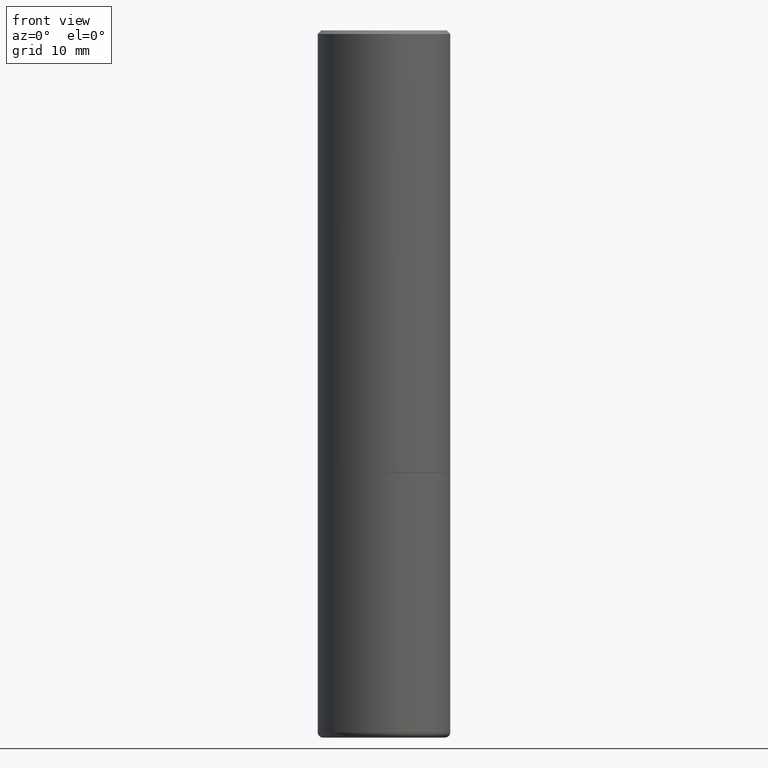
[diagram: clean part render]
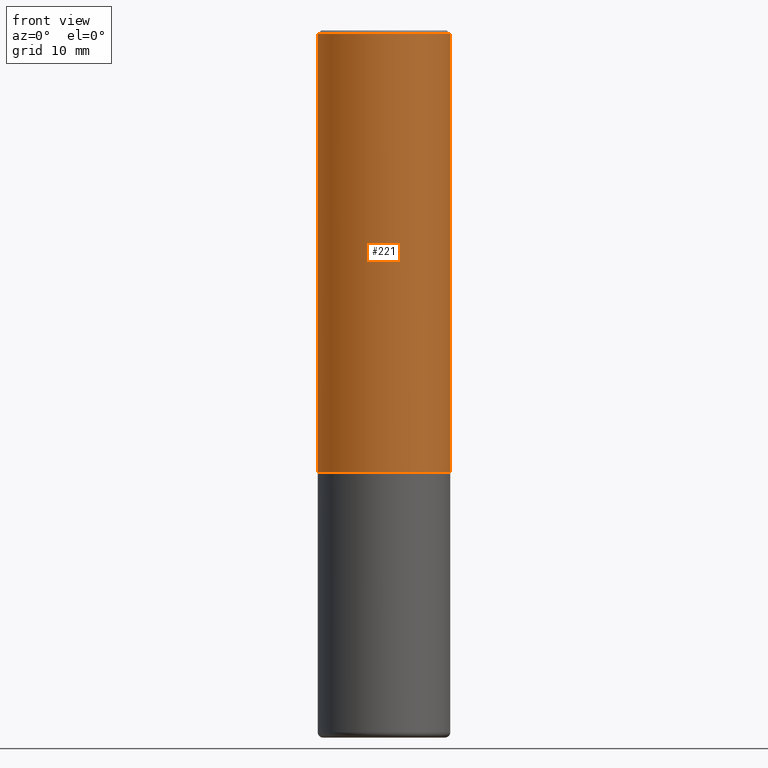
[diagram: same view with one face highlighted and labeled with its STEP entity id]
A machine part, front view. The second image highlights one B-rep face of the part: STEP entity #221.
In plain terms, the highlighted cylindrical surface (partial cylindrical patch) has radius 9.525 mm, axis along (-0, 0, 1).
Its self-contained STEP definition (entity closure, byte-faithful):
#5 = VERTEX_POINT ( 'NONE', #251 ) ;
#21 = CARTESIAN_POINT ( 'NONE',  ( -0.3749999999999999445, -1.732985487172565737E-15, -2.499000000000000998 ) ) ;
#41 = EDGE_LOOP ( 'NONE', ( #49, #349, #292, #92 ) ) ;
#44 = EDGE_CURVE ( 'NONE', #79, #5, #374, .T. ) ;
#49 = ORIENTED_EDGE ( 'NONE', *, *, #267, .F. ) ;
#60 = CIRCLE ( 'NONE', #279, 0.3749999999999996669 ) ;
#79 = VERTEX_POINT ( 'NONE', #21 ) ;
#92 = ORIENTED_EDGE ( 'NONE', *, *, #302, .F. ) ;
#98 = CARTESIAN_POINT ( 'NONE',  ( 4.890937612370276662E-31, -6.982962677686296539E-17, -0.02000000000000001776 ) ) ;
#99 = EDGE_CURVE ( 'NONE', #5, #157, #304, .T. ) ;
#145 = DIRECTION ( 'NONE',  ( 1.000000000000000000, -6.982962677686265922E-15, 4.876176775795935793E-29 ) ) ;
#157 = VERTEX_POINT ( 'NONE', #259 ) ;
#159 = CARTESIAN_POINT ( 'NONE',  ( 0.3749999999999998335, -2.618611004132348439E-15, 1.828566290923475082E-29 ) ) ;
#169 = DIRECTION ( 'NONE',  ( -2.445468806185136877E-29, 3.491481338843145188E-15, 1.000000000000000000 ) ) ;
#175 = VERTEX_POINT ( 'NONE', #365 ) ;
#177 = CARTESIAN_POINT ( 'NONE',  ( -0.3749999999999998335, 2.664535259100374514E-15, -1.844600658845588757E-29 ) ) ;
#184 = VECTOR ( 'NONE', #442, 39.37007874015748143 ) ;
#203 = CYLINDRICAL_SURFACE ( 'NONE', #303, 0.3749999999999998335 ) ;
#204 = VECTOR ( 'NONE', #169, 39.37007874015748143 ) ;
#211 = AXIS2_PLACEMENT_3D ( 'NONE', #435, #338, #266 ) ;
#221 = ADVANCED_FACE ( 'NONE', ( #341 ), #203, .T. ) ;
#251 = CARTESIAN_POINT ( 'NONE',  ( 0.3750000000000000555, -1.134382286990137353E-14, -2.499000000000000998 ) ) ;
#259 = CARTESIAN_POINT ( 'NONE',  ( 0.3749999999999996669, -2.642516375941185268E-15, -0.02000000000000001776 ) ) ;
#266 = DIRECTION ( 'NONE',  ( 1.000000000000000000, -6.982962677686264344E-15, 0.000000000000000000 ) ) ;
#267 = EDGE_CURVE ( 'NONE', #79, #175, #277, .T. ) ;
#275 = DIRECTION ( 'NONE',  ( -2.445468806185136597E-29, 3.491481338843145583E-15, 1.000000000000000000 ) ) ;
#277 = LINE ( 'NONE', #177, #204 ) ;
#279 = AXIS2_PLACEMENT_3D ( 'NONE', #98, #306, #383 ) ;
#292 = ORIENTED_EDGE ( 'NONE', *, *, #99, .T. ) ;
#302 = EDGE_CURVE ( 'NONE', #175, #157, #60, .T. ) ;
#303 = AXIS2_PLACEMENT_3D ( 'NONE', #347, #275, #145 ) ;
#304 = LINE ( 'NONE', #159, #184 ) ;
#306 = DIRECTION ( 'NONE',  ( -2.445468806185136597E-29, 3.491481338843145583E-15, 1.000000000000000000 ) ) ;
#338 = DIRECTION ( 'NONE',  ( -2.445468806185136597E-29, 3.491481338843145583E-15, 1.000000000000000000 ) ) ;
#341 = FACE_OUTER_BOUND ( 'NONE', #41, .T. ) ;
#347 = CARTESIAN_POINT ( 'NONE',  ( 0.000000000000000000, 0.000000000000000000, 0.000000000000000000 ) ) ;
#349 = ORIENTED_EDGE ( 'NONE', *, *, #44, .T. ) ;
#365 = CARTESIAN_POINT ( 'NONE',  ( -0.3749999999999996669, 2.548781377355484746E-15, -0.02000000000000001776 ) ) ;
#374 = CIRCLE ( 'NONE', #211, 0.3750000000000000555 ) ;
#383 = DIRECTION ( 'NONE',  ( 1.000000000000000000, -6.982962677686266711E-15, 0.000000000000000000 ) ) ;
#435 = CARTESIAN_POINT ( 'NONE',  ( 6.111226546656659252E-29, -8.725211865769023513E-15, -2.499000000000000998 ) ) ;
#442 = DIRECTION ( 'NONE',  ( -2.445468806185136877E-29, 3.491481338843145188E-15, 1.000000000000000000 ) ) ;